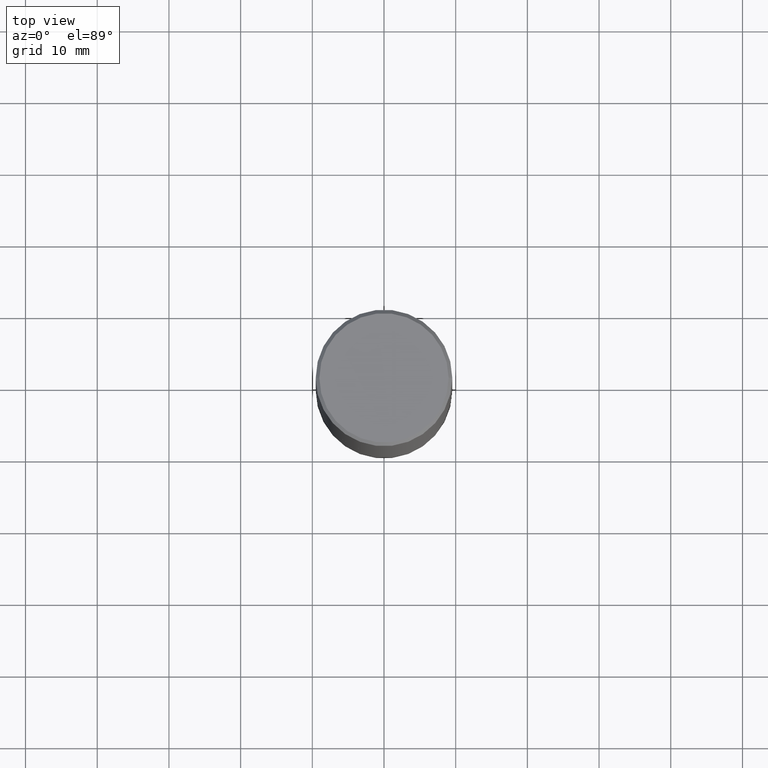
[diagram: clean part render]
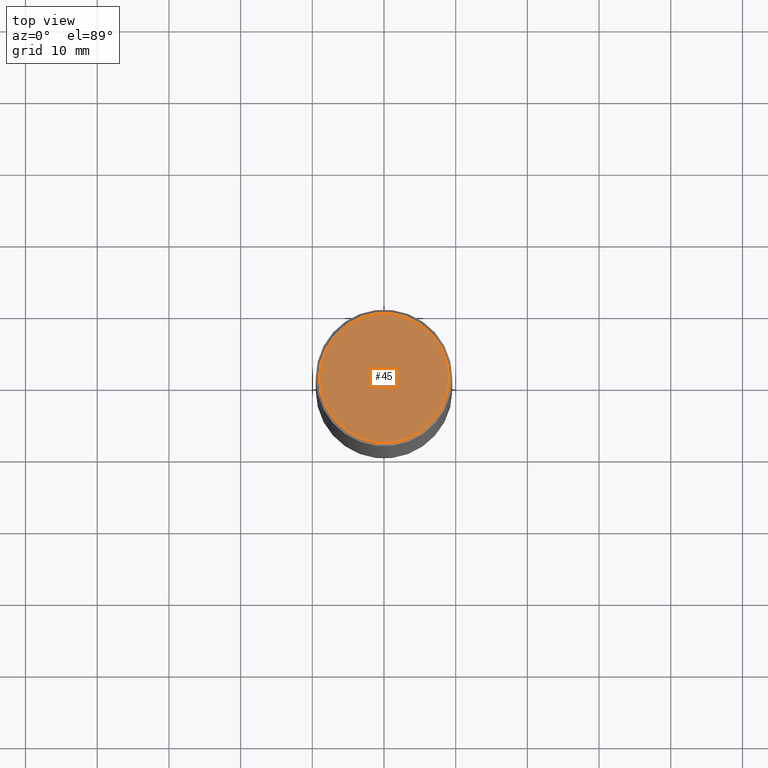
[diagram: same view with one face highlighted and labeled with its STEP entity id]
A machine part, top view. The second image highlights one B-rep face of the part: STEP entity #45.
In plain terms, the highlighted planar face has unit normal (0, -0, -1).
Its self-contained STEP definition (entity closure, byte-faithful):
#21 = DIRECTION ( 'NONE',  ( -1.000000000000000000, 6.982962677686265922E-15, -4.876176775795935793E-29 ) ) ;
#31 = CIRCLE ( 'NONE', #220, 0.3549999999999997602 ) ;
#42 = DIRECTION ( 'NONE',  ( -2.445468806185136597E-29, 3.491481338843145583E-15, 1.000000000000000000 ) ) ;
#45 = ADVANCED_FACE ( 'NONE', ( #221 ), #112, .F. ) ;
#56 = AXIS2_PLACEMENT_3D ( 'NONE', #161, #225, #21 ) ;
#60 = CARTESIAN_POINT ( 'NONE',  ( -1.043851414335219820E-46, 1.490343170380447200E-32, 4.268512490100411279E-18 ) ) ;
#106 = VERTEX_POINT ( 'NONE', #284 ) ;
#112 = PLANE ( 'NONE',  #56 ) ;
#118 = CIRCLE ( 'NONE', #211, 0.3549999999999997602 ) ;
#130 = ORIENTED_EDGE ( 'NONE', *, *, #293, .T. ) ;
#139 = EDGE_CURVE ( 'NONE', #214, #106, #118, .T. ) ;
#161 = CARTESIAN_POINT ( 'NONE',  ( 2.478951750578623026E-15, 0.3549999999999997602, -1.237341619044265638E-15 ) ) ;
#168 = DIRECTION ( 'NONE',  ( -2.445468806185136597E-29, 3.491481338843145583E-15, 1.000000000000000000 ) ) ;
#169 = CARTESIAN_POINT ( 'NONE',  ( -0.3549999999999997602, 2.513866563967053491E-15, 4.268512490082953109E-18 ) ) ;
#211 = AXIS2_PLACEMENT_3D ( 'NONE', #60, #168, #315 ) ;
#214 = VERTEX_POINT ( 'NONE', #169 ) ;
#220 = AXIS2_PLACEMENT_3D ( 'NONE', #349, #42, #329 ) ;
#221 = FACE_OUTER_BOUND ( 'NONE', #308, .T. ) ;
#225 = DIRECTION ( 'NONE',  ( 2.438088387897960049E-29, -3.491481338843145188E-15, -1.000000000000000000 ) ) ;
#284 = CARTESIAN_POINT ( 'NONE',  ( 0.3549999999999997602, -2.538996582575039076E-15, 4.268512490117958041E-18 ) ) ;
#293 = EDGE_CURVE ( 'NONE', #106, #214, #31, .T. ) ;
#308 = EDGE_LOOP ( 'NONE', ( #328, #130 ) ) ;
#315 = DIRECTION ( 'NONE',  ( 1.000000000000000000, -6.982962677686266711E-15, 4.876231632511991546E-29 ) ) ;
#328 = ORIENTED_EDGE ( 'NONE', *, *, #139, .T. ) ;
#329 = DIRECTION ( 'NONE',  ( 1.000000000000000000, -6.982962677686266711E-15, 4.876231632511991546E-29 ) ) ;
#349 = CARTESIAN_POINT ( 'NONE',  ( -1.043851414335219820E-46, 1.490343170380447200E-32, 4.268512490100411279E-18 ) ) ;